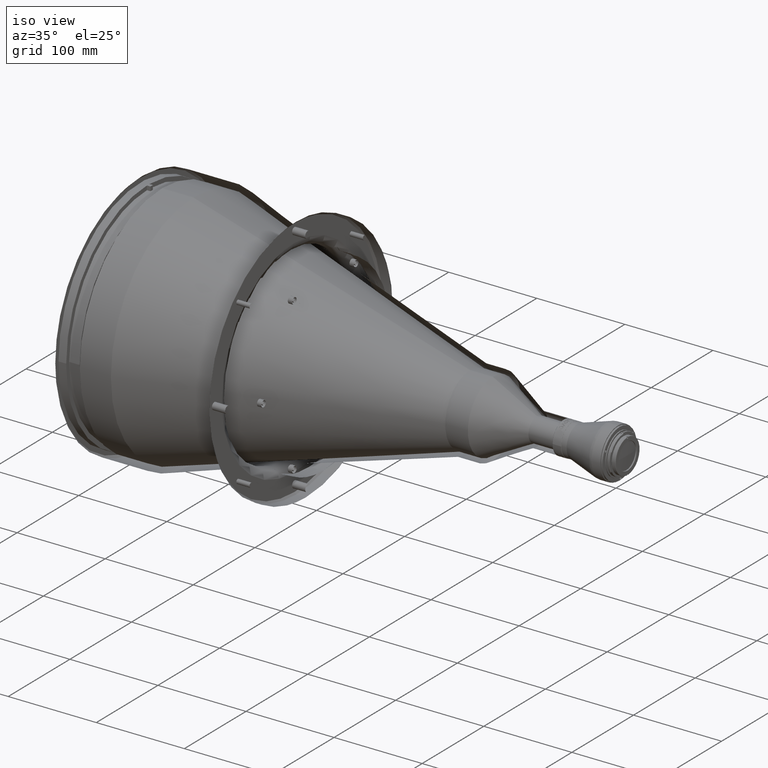
[diagram: clean part render]
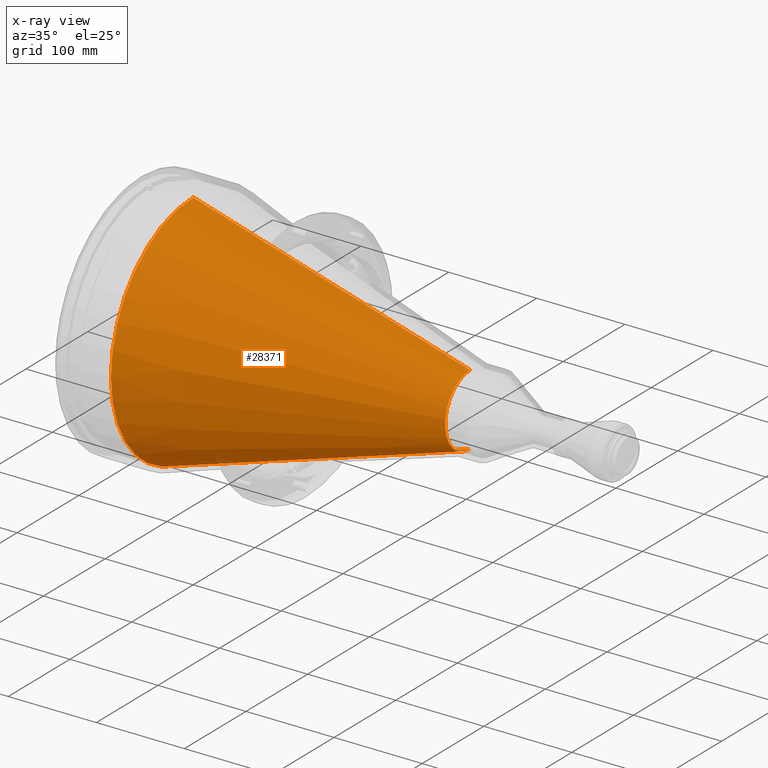
[diagram: x-ray — body ghosted, one internal face saturated and labeled with its STEP entity id]
A machine part, iso view, then the same camera in x-ray: the body is ghosted and one INTERNAL B-rep face — a face not visible from any outside direction — is saturated and labeled: STEP entity #28371.
In plain terms, the highlighted conical surface has half-angle 16.478 deg.
Its self-contained STEP definition (entity closure, byte-faithful):
#423 = DIRECTION ( 'NONE',  ( -1.000000000000000000, 0.000000000000000000, 0.000000000000000000 ) ) ;
#1804 = CARTESIAN_POINT ( 'NONE',  ( 374.5000000252640007, 4.958564387412983371E-15, 40.48975092953601518 ) ) ;
#3216 = EDGE_CURVE ( 'NONE', #45737, #39403, #15365, .T. ) ;
#4002 = VERTEX_POINT ( 'NONE', #38052 ) ;
#4281 = EDGE_CURVE ( 'NONE', #45737, #4002, #34653, .T. ) ;
#5567 = EDGE_CURVE ( 'NONE', #4002, #54708, #48909, .T. ) ;
#9068 = FACE_OUTER_BOUND ( 'NONE', #48463, .T. ) ;
#12317 = ORIENTED_EDGE ( 'NONE', *, *, #3216, .F. ) ;
#14346 = ORIENTED_EDGE ( 'NONE', *, *, #30418, .F. ) ;
#15365 = CIRCLE ( 'NONE', #46470, 40.48975092953600097 ) ;
#17401 = DIRECTION ( 'NONE',  ( 0.000000000000000000, 0.000000000000000000, -1.000000000000000000 ) ) ;
#18232 = CARTESIAN_POINT ( 'NONE',  ( 217.2500000096850101, -1.065483836902420006E-14, 87.00335783707201642 ) ) ;
#19766 = VECTOR ( 'NONE', #29932, 1000.000000000000114 ) ;
#23599 = AXIS2_PLACEMENT_3D ( 'NONE', #47745, #423, #17401 ) ;
#25677 = ORIENTED_EDGE ( 'NONE', *, *, #5567, .T. ) ;
#28371 = ADVANCED_FACE ( 'NONE', ( #9068 ), #48513, .T. ) ;
#29932 = DIRECTION ( 'NONE',  ( -0.9589292077558846383, -3.473655641211906569E-17, 0.2836455085360449213 ) ) ;
#30418 = EDGE_CURVE ( 'NONE', #39403, #54708, #33286, .T. ) ;
#32871 = AXIS2_PLACEMENT_3D ( 'NONE', #51858, #42940, #52410 ) ;
#33286 = LINE ( 'NONE', #36442, #51969 ) ;
#34653 = LINE ( 'NONE', #18232, #19766 ) ;
#35733 = CARTESIAN_POINT ( 'NONE',  ( 374.5000000252640007, 0.000000000000000000, 1.554312234475219788E-14 ) ) ;
#36442 = CARTESIAN_POINT ( 'NONE',  ( 217.2500000096850101, 0.000000000000000000, -87.00335783707198800 ) ) ;
#37137 = ORIENTED_EDGE ( 'NONE', *, *, #4281, .T. ) ;
#37733 = DIRECTION ( 'NONE',  ( -0.9589292077558846383, 0.000000000000000000, -0.2836455085360449213 ) ) ;
#38052 = CARTESIAN_POINT ( 'NONE',  ( 59.99999999410530194, 1.635111235063541911E-14, 133.5169647446080319 ) ) ;
#39168 = CARTESIAN_POINT ( 'NONE',  ( 59.99999999410530194, 0.000000000000000000, -133.5169647446079750 ) ) ;
#39403 = VERTEX_POINT ( 'NONE', #47858 ) ;
#39904 = DIRECTION ( 'NONE',  ( 1.000000000000000000, 0.000000000000000000, 0.000000000000000000 ) ) ;
#42940 = DIRECTION ( 'NONE',  ( 1.000000000000000000, 0.000000000000000000, 0.000000000000000000 ) ) ;
#43534 = DIRECTION ( 'NONE',  ( 0.000000000000000000, 0.000000000000000000, -1.000000000000000000 ) ) ;
#45737 = VERTEX_POINT ( 'NONE', #1804 ) ;
#46470 = AXIS2_PLACEMENT_3D ( 'NONE', #35733, #39904, #43534 ) ;
#47745 = CARTESIAN_POINT ( 'NONE',  ( 217.2500000096850101, 0.000000000000000000, 1.554312234475219788E-14 ) ) ;
#47858 = CARTESIAN_POINT ( 'NONE',  ( 374.5000000252640007, 0.000000000000000000, -40.48975092953598676 ) ) ;
#48463 = EDGE_LOOP ( 'NONE', ( #12317, #37137, #25677, #14346 ) ) ;
#48513 = CONICAL_SURFACE ( 'NONE', #23599, 87.00335783707200221, 0.2875936283731387877 ) ;
#48909 = CIRCLE ( 'NONE', #32871, 133.5169647446080035 ) ;
#51858 = CARTESIAN_POINT ( 'NONE',  ( 59.99999999410530194, 0.000000000000000000, 1.554312234475219788E-14 ) ) ;
#51969 = VECTOR ( 'NONE', #37733, 1000.000000000000114 ) ;
#52410 = DIRECTION ( 'NONE',  ( 0.000000000000000000, 0.000000000000000000, -1.000000000000000000 ) ) ;
#54708 = VERTEX_POINT ( 'NONE', #39168 ) ;